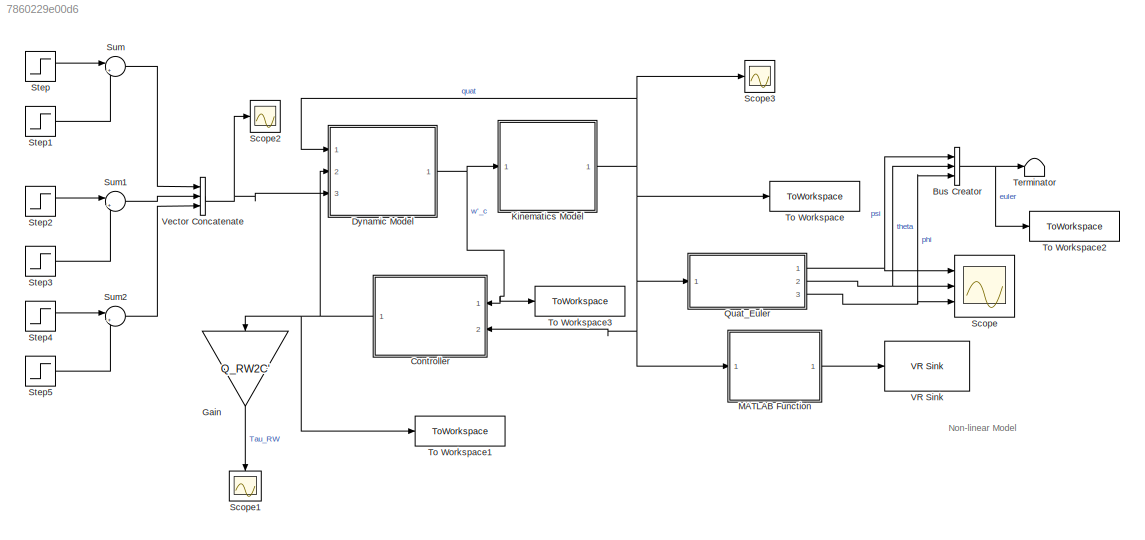
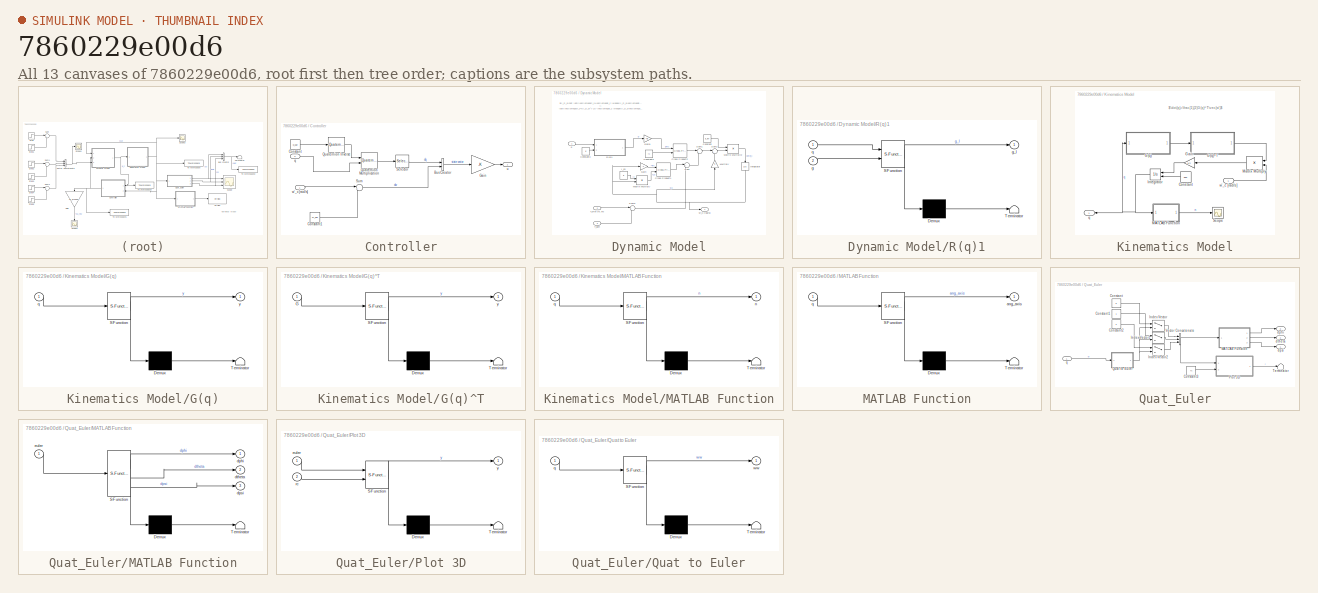
[diagram: thumbnail index - all 13 canvases of the model, root first then tree order]
MODEL slx_7860229e00d6
KIND model
CONFIG AbsTol = auto
CONFIG EnableMultiTasking = off
CONFIG FixedStep = 5e-6
CONFIG MaxStep = 10^-6
CONFIG MinStep = auto
CONFIG RelTol = 1e-3
CONFIG SampleTimeConstraint = Unconstrained
CONFIG SolverName = ode4
CONFIG StartTime = 0.0
CONFIG StopTime = 10
BLOCK [BusCreator] Bus Creator
  DisplayOption = bar
  InheritFromInputs = on
  Inputs = 3
  Ports = [3, 1]
BLOCK [SubSystem] Controller
  Ports = [2, 1]
  RequestExecContextInheritance = off
BLOCK [BusCreator] Controller/Bus Creator
  DisplayOption = bar
  InheritFromInputs = on
  Inputs = 2
  Ports = [2, 1]
BLOCK [Constant] Controller/Constant
  Value = q_bar
BLOCK [Constant] Controller/Constant1
  Value = w_bar
BLOCK [Gain] Controller/Gain
  Gain = -K
  Multiplication = Matrix(K*u) (u vector)
BLOCK [Reference] Controller/Quaternion Inverse  REF=aerolibutil/Quaternion
Inverse
  Ports = [1, 1]
  SourceBlock = aerolibutil/Quaternion\nInverse
  SourceProductBaseCode = AE
  SourceType = Quaternion Inverse
BLOCK [Reference] Controller/Quaternion Multiplication  REF=aerolibutil/Quaternion
Multiplication
  Ports = [2, 1]
  SourceBlock = aerolibutil/Quaternion\nMultiplication
  SourceProductBaseCode = AE
  SourceType = Quaternion Multiplication
BLOCK [Selector] Controller/Selector
  IndexOptions = Index vector (dialog)
  Indices = [2 3 4]
  InputPortWidth = 4
  OutputSizes = 1
  Ports = [1, 1]
BLOCK [Sum] Controller/Sum
  Inputs = |+-
  Ports = [2, 1]
BLOCK [Inport] Controller/q
  Port = 2
BLOCK [Outport] Controller/u
BLOCK [Inport] Controller/w'_c [rad//s]
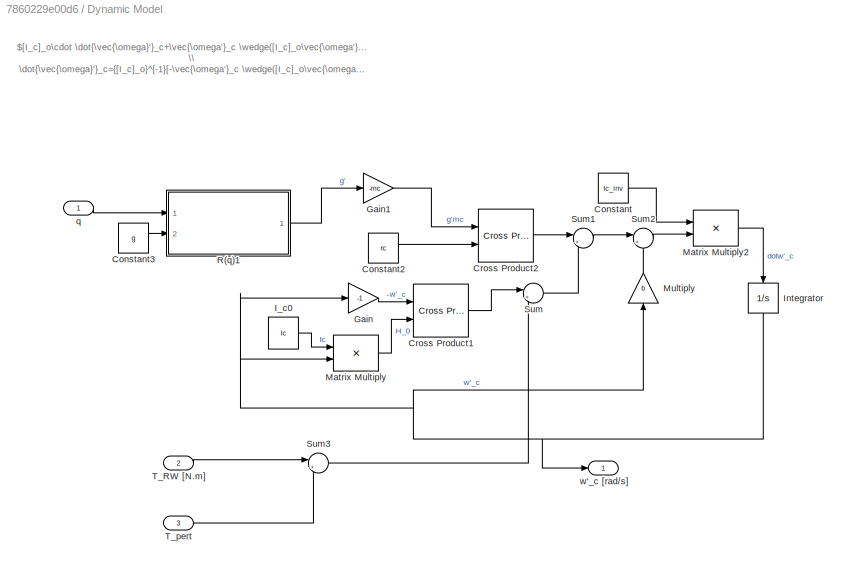
BLOCK [SubSystem] Dynamic Model
  Ports = [3, 1]
  RequestExecContextInheritance = off
BLOCK [Constant] Dynamic Model/Constant
  Value = Ic_inv
BLOCK [Constant] Dynamic Model/Constant2
  Value = rc
BLOCK [Constant] Dynamic Model/Constant3
  Value = g
BLOCK [Reference] Dynamic Model/Cross Product1  REF=vrlib/Utilities/Cross Product
  Ports = [2, 1]
  SourceBlock = vrlib/Utilities/Cross Product
  SourceProductBaseCode = SL
  SourceType = Cross Product
BLOCK [Reference] Dynamic Model/Cross Product2  REF=vrlib/Utilities/Cross Product
  Ports = [2, 1]
  SourceBlock = vrlib/Utilities/Cross Product
  SourceProductBaseCode = SL
  SourceType = Cross Product
BLOCK [Gain] Dynamic Model/Gain
  Gain = -1
BLOCK [Gain] Dynamic Model/Gain1
  Gain = -mc
BLOCK [Constant] Dynamic Model/I_c0
  Value = Ic
BLOCK [Integrator] Dynamic Model/Integrator
  InitialCondition = w00
  NameLocation = left
  Ports = [1, 1]
BLOCK [Product] Dynamic Model/Matrix Multiply
  Multiplication = Matrix(*)
  Ports = [2, 1]
BLOCK [Product] Dynamic Model/Matrix Multiply2
  Multiplication = Matrix(*)
  Ports = [2, 1]
BLOCK [Gain] Dynamic Model/Multiply
  Gain = b
  NameLocation = right
BLOCK [SubSystem] Dynamic Model/R(q)1
  ErrorFcn = Stateflow.Translate.translate
  PermitHierarchicalResolution = ExplicitOnly
  Ports = [2, 1]
  RequestExecContextInheritance = off
  SFBlockType = MATLAB Function
  TreatAsAtomicUnit = on
BLOCK [Demux] Dynamic Model/R(q)1/ Demux 
  Outputs = 1
  Ports = [1, 1]
BLOCK [S-Function] Dynamic Model/R(q)1/ SFunction 
  EnableBusSupport = on
  FunctionName = sf_sfun
  PortCounts = [2 2]
  Ports = [2, 2]
  SFcnIsStateOwnerBlock = off
  SFunctionDeploymentMode = off
  Tag = Stateflow S-Function 1
BLOCK [Terminator] Dynamic Model/R(q)1/ Terminator 
BLOCK [Inport] Dynamic Model/R(q)1/g
  Port = 2
BLOCK [Outport] Dynamic Model/R(q)1/g_l
BLOCK [Inport] Dynamic Model/R(q)1/q
BLOCK [Sum] Dynamic Model/Sum
  Inputs = |++
  Ports = [2, 1]
BLOCK [Sum] Dynamic Model/Sum1
  Inputs = |++
  Ports = [2, 1]
BLOCK [Sum] Dynamic Model/Sum2
  Inputs = |+-
  Ports = [2, 1]
BLOCK [Sum] Dynamic Model/Sum3
  Inputs = |++
  Ports = [2, 1]
BLOCK [Inport] Dynamic Model/T_RW [N.m]
  Port = 2
BLOCK [Inport] Dynamic Model/T_pert
  Port = 3
BLOCK [Inport] Dynamic Model/q
BLOCK [Outport] Dynamic Model/w'_c [rad//s]
BLOCK [Gain] Gain
  Gain = Q_RW2C'
  Multiplication = Matrix(K*u)
  NameLocation = left
BLOCK [SubSystem] Kinematics Model
  Ports = [1, 1]
  RequestExecContextInheritance = off
  ShowPortLabels = FromPortBlockName
BLOCK [Constant] Kinematics Model/Constant
  NameLocation = top
  Value = q00
BLOCK [SubSystem] Kinematics Model/G(q)
  ErrorFcn = Stateflow.Translate.translate
  PermitHierarchicalResolution = ExplicitOnly
  Ports = [1, 1]
  RequestExecContextInheritance = off
  SFBlockType = MATLAB Function
  TreatAsAtomicUnit = on
BLOCK [Demux] Kinematics Model/G(q)/ Demux 
  Outputs = 1
  Ports = [1, 1]
BLOCK [S-Function] Kinematics Model/G(q)/ SFunction 
  EnableBusSupport = on
  FunctionName = sf_sfun
  PortCounts = [1 2]
  Ports = [1, 2]
  SFcnIsStateOwnerBlock = off
  SFunctionDeploymentMode = off
  Tag = Stateflow S-Function 5
BLOCK [Terminator] Kinematics Model/G(q)/ Terminator 
BLOCK [Inport] Kinematics Model/G(q)/q
BLOCK [Outport] Kinematics Model/G(q)/y
BLOCK [SubSystem] Kinematics Model/G(q)^T
  ErrorFcn = Stateflow.Translate.translate
  PermitHierarchicalResolution = ExplicitOnly
  Ports = [1, 1]
  RequestExecContextInheritance = off
  SFBlockType = MATLAB Function
  TreatAsAtomicUnit = on
BLOCK [Demux] Kinematics Model/G(q)^T/ Demux 
  Outputs = 1
  Ports = [1, 1]
BLOCK [S-Function] Kinematics Model/G(q)^T/ SFunction 
  EnableBusSupport = on
  FunctionName = sf_sfun
  PortCounts = [1 2]
  Ports = [1, 2]
  SFcnIsStateOwnerBlock = off
  SFunctionDeploymentMode = off
  Tag = Stateflow S-Function 6
BLOCK [Terminator] Kinematics Model/G(q)^T/ Terminator 
BLOCK [Inport] Kinematics Model/G(q)^T/G
BLOCK [Outport] Kinematics Model/G(q)^T/y
BLOCK [Gain] Kinematics Model/Gain
  Gain = 1/2
  NameLocation = top
BLOCK [Integrator] Kinematics Model/Integrator
  InitialCondition = q00
  InitialConditionSource = external
  LowerSaturationLimit = -1
  NameLocation = top
  Ports = [2, 1]
  UpperSaturationLimit = 1
BLOCK [SubSystem] Kinematics Model/MATLAB Function
  ErrorFcn = Stateflow.Translate.translate
  PermitHierarchicalResolution = ExplicitOnly
  Ports = [1, 1]
  RequestExecContextInheritance = off
  SFBlockType = MATLAB Function
  TreatAsAtomicUnit = on
BLOCK [Demux] Kinematics Model/MATLAB Function/ Demux 
  Outputs = 1
  Ports = [1, 1]
BLOCK [S-Function] Kinematics Model/MATLAB Function/ SFunction 
  EnableBusSupport = on
  FunctionName = sf_sfun
  PortCounts = [1 2]
  Ports = [1, 2]
  SFcnIsStateOwnerBlock = off
  SFunctionDeploymentMode = off
  Tag = Stateflow S-Function 4
BLOCK [Terminator] Kinematics Model/MATLAB Function/ Terminator 
BLOCK [Outport] Kinematics Model/MATLAB Function/n
BLOCK [Inport] Kinematics Model/MATLAB Function/q
BLOCK [Product] Kinematics Model/Matrix Multiply
  Multiplication = Matrix(*)
  NameLocation = top
  Ports = [2, 1]
BLOCK [Scope] Kinematics Model/Scope
  Floating = off
  NumInputPorts = 1
  Ports = [1]
  ScopeSpecificationString = Simulink.scopes.TimeScopeBlockCfg('CurrentConfiguration', extmgr.ConfigurationSet(extmgr.Configuration('Core','General UI',true),extmgr.Configuration('Core','Source UI',true),extmgr.Configuration('Sources','WiredSimulink',true,'DataLoggingVariableName','ScopeData1'),extmgr.Configuration('Visuals','Time Domain',true,'SerializedDisplays',{struct('MinYLimReal','0.9','MaxYLimReal','1.1','YLabelReal','...<+1485ch>
BLOCK [Outport] Kinematics Model/q
  NameLocation = top
BLOCK [Inport] Kinematics Model/w'_c [rad//s]
BLOCK [SubSystem] MATLAB Function
  Commented = on
  ErrorFcn = Stateflow.Translate.translate
  PermitHierarchicalResolution = ExplicitOnly
  Ports = [1, 1]
  RequestExecContextInheritance = off
  SFBlockType = MATLAB Function
  TreatAsAtomicUnit = on
BLOCK [Demux] MATLAB Function/ Demux 
  Outputs = 1
  Ports = [1, 1]
BLOCK [S-Function] MATLAB Function/ SFunction 
  EnableBusSupport = on
  FunctionName = sf_sfun
  PortCounts = [1 2]
  Ports = [1, 2]
  SFcnIsStateOwnerBlock = off
  SFunctionDeploymentMode = off
  Tag = Stateflow S-Function 7
BLOCK [Terminator] MATLAB Function/ Terminator 
BLOCK [Outport] MATLAB Function/ang_axis
BLOCK [Inport] MATLAB Function/q
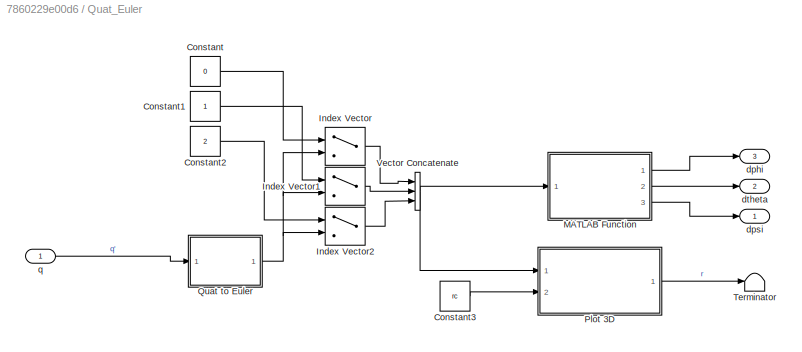
BLOCK [SubSystem] Quat_Euler
  Ports = [1, 3]
  RequestExecContextInheritance = off
BLOCK [Constant] Quat_Euler/Constant
  Value = 0
BLOCK [Constant] Quat_Euler/Constant1
BLOCK [Constant] Quat_Euler/Constant2
  Value = 2
BLOCK [Constant] Quat_Euler/Constant3
  Value = rc
BLOCK [MultiPortSwitch] Quat_Euler/Index Vector
  DataPortOrder = Zero-based contiguous
  InputSameDT = off
  Inputs = 1
  Ports = [2, 1]
  SaturateOnIntegerOverflow = off
  zeroidx = on
BLOCK [MultiPortSwitch] Quat_Euler/Index Vector1
  DataPortOrder = Zero-based contiguous
  InputSameDT = off
  Inputs = 1
  Ports = [2, 1]
  SaturateOnIntegerOverflow = off
  zeroidx = on
BLOCK [MultiPortSwitch] Quat_Euler/Index Vector2
  DataPortOrder = Zero-based contiguous
  InputSameDT = off
  Inputs = 1
  Ports = [2, 1]
  SaturateOnIntegerOverflow = off
  zeroidx = on
BLOCK [SubSystem] Quat_Euler/MATLAB Function
  ErrorFcn = Stateflow.Translate.translate
  PermitHierarchicalResolution = ExplicitOnly
  Ports = [1, 3]
  RequestExecContextInheritance = off
  SFBlockType = MATLAB Function
  TreatAsAtomicUnit = on
BLOCK [Demux] Quat_Euler/MATLAB Function/ Demux 
  Outputs = 1
  Ports = [1, 1]
BLOCK [S-Function] Quat_Euler/MATLAB Function/ SFunction 
  EnableBusSupport = on
  FunctionName = sf_sfun
  PortCounts = [1 4]
  Ports = [1, 4]
  SFcnIsStateOwnerBlock = off
  SFunctionDeploymentMode = off
  Tag = Stateflow S-Function 2
BLOCK [Terminator] Quat_Euler/MATLAB Function/ Terminator 
BLOCK [Outport] Quat_Euler/MATLAB Function/dphi
BLOCK [Outport] Quat_Euler/MATLAB Function/dpsi
  Port = 3
BLOCK [Outport] Quat_Euler/MATLAB Function/dtheta
  Port = 2
BLOCK [Inport] Quat_Euler/MATLAB Function/euler
BLOCK [SubSystem] Quat_Euler/Plot 3D
  ErrorFcn = Stateflow.Translate.translate
  PermitHierarchicalResolution = ExplicitOnly
  Ports = [2, 1]
  RequestExecContextInheritance = off
  SFBlockType = MATLAB Function
  TreatAsAtomicUnit = on
BLOCK [Demux] Quat_Euler/Plot 3D/ Demux 
  Outputs = 1
  Ports = [1, 1]
BLOCK [S-Function] Quat_Euler/Plot 3D/ SFunction 
  EnableBusSupport = on
  FunctionName = sf_sfun
  PortCounts = [2 2]
  Ports = [2, 2]
  SFcnIsStateOwnerBlock = off
  SFunctionDeploymentMode = off
  Tag = Stateflow S-Function 9
BLOCK [Terminator] Quat_Euler/Plot 3D/ Terminator 
BLOCK [Inport] Quat_Euler/Plot 3D/euler
BLOCK [Inport] Quat_Euler/Plot 3D/rc
  Port = 2
BLOCK [Outport] Quat_Euler/Plot 3D/y
BLOCK [SubSystem] Quat_Euler/Quat to Euler
  ErrorFcn = Stateflow.Translate.translate
  PermitHierarchicalResolution = ExplicitOnly
  Ports = [1, 1]
  RequestExecContextInheritance = off
  SFBlockType = MATLAB Function
  TreatAsAtomicUnit = on
BLOCK [Demux] Quat_Euler/Quat to Euler/ Demux 
  Outputs = 1
  Ports = [1, 1]
BLOCK [S-Function] Quat_Euler/Quat to Euler/ SFunction 
  EnableBusSupport = on
  FunctionName = sf_sfun
  PortCounts = [1 2]
  Ports = [1, 2]
  SFcnIsStateOwnerBlock = off
  SFunctionDeploymentMode = off
  Tag = Stateflow S-Function 3
BLOCK [Terminator] Quat_Euler/Quat to Euler/ Terminator 
BLOCK [Inport] Quat_Euler/Quat to Euler/q
BLOCK [Outport] Quat_Euler/Quat to Euler/ww
BLOCK [Terminator] Quat_Euler/Terminator
BLOCK [Concatenate] Quat_Euler/Vector Concatenate
  NumInputs = 3
  Ports = [3, 1]
BLOCK [Outport] Quat_Euler/dphi
  Port = 3
BLOCK [Outport] Quat_Euler/dpsi
BLOCK [Outport] Quat_Euler/dtheta
  Port = 2
BLOCK [Inport] Quat_Euler/q
BLOCK [Scope] Scope
  Floating = off
  NumInputPorts = 3
  Ports = [3]
  ScopeSpecificationString = Simulink.scopes.TimeScopeBlockCfg('CurrentConfiguration', extmgr.ConfigurationSet(extmgr.Configuration('Core','General UI',true,'DisplayFullSourceName',true),extmgr.Configuration('Core','Source UI',true),extmgr.Configuration('Sources','WiredSimulink',true),extmgr.Configuration('Visuals','Time Domain',true,'SerializedDisplays',{struct('MinYLimReal','-3.4363','MaxYLimReal','11.52835','YLabelReal',''...<+1601ch>
BLOCK [Scope] Scope1
  Floating = off
  NameLocation = left
  NumInputPorts = 1
  Ports = [1]
  ScopeSpecificationString = Simulink.scopes.TimeScopeBlockCfg('CurrentConfiguration', extmgr.ConfigurationSet(extmgr.Configuration('Core','General UI',true),extmgr.Configuration('Core','Source UI',true),extmgr.Configuration('Sources','WiredSimulink',true,'DataLoggingVariableName','ScopeData1'),extmgr.Configuration('Visuals','Time Domain',true,'SerializedDisplays',{struct('MinYLimReal','-0.39705','MaxYLimReal','0.28561','YLab...<+1459ch>
BLOCK [Scope] Scope2
  Floating = off
  NumInputPorts = 1
  Ports = [1]
  ScopeSpecificationString = Simulink.scopes.TimeScopeBlockCfg('CurrentConfiguration', extmgr.ConfigurationSet(extmgr.Configuration('Core','General UI',true),extmgr.Configuration('Core','Source UI',true),extmgr.Configuration('Sources','WiredSimulink',true,'DataLoggingVariableName','ScopeData1'),extmgr.Configuration('Visuals','Time Domain',true,'SerializedDisplays',{struct('MinYLimReal','-1.00000','MaxYLimReal','1.00000','YLab...<+1411ch>
BLOCK [Scope] Scope3
  Floating = off
  NumInputPorts = 1
  Ports = [1]
  ScopeSpecificationString = Simulink.scopes.TimeScopeBlockCfg('CurrentConfiguration', extmgr.ConfigurationSet(extmgr.Configuration('Core','General UI',true),extmgr.Configuration('Core','Source UI',true),extmgr.Configuration('Sources','WiredSimulink',true,'DataLoggingVariableName','ScopeData1'),extmgr.Configuration('Visuals','Time Domain',true,'SerializedDisplays',{struct('MinYLimReal','-0.12452','MaxYLimReal','1.12072','YLab...<+1392ch>
BLOCK [Step] Step
  After = 3
  SampleTime = 0
  Time = 2.5
BLOCK [Step] Step1
  After = 3
  SampleTime = 0
  Time = 2.501
BLOCK [Step] Step2
  After = 3
  SampleTime = 0
  Time = 5
BLOCK [Step] Step3
  After = 3
  SampleTime = 0
  Time = 5.001
BLOCK [Step] Step4
  After = 3
  SampleTime = 0
  Time = 7.5
BLOCK [Step] Step5
  After = 3
  SampleTime = 0
  Time = 7.501
BLOCK [Sum] Sum
  Inputs = |+-
  Ports = [2, 1]
BLOCK [Sum] Sum1
  Inputs = |+-
  Ports = [2, 1]
BLOCK [Sum] Sum2
  Inputs = |+-
  Ports = [2, 1]
BLOCK [Terminator] Terminator
BLOCK [ToWorkspace] To Workspace
  FixptAsFi = on
  MaxDataPoints = inf
  Ports = [1]
  SampleTime = -1
  SaveFormat = Timeseries
  VariableName = quat
BLOCK [ToWorkspace] To Workspace1
  FixptAsFi = on
  MaxDataPoints = inf
  Ports = [1]
  SampleTime = -1
  SaveFormat = Timeseries
  VariableName = u
BLOCK [ToWorkspace] To Workspace2
  FixptAsFi = on
  MaxDataPoints = inf
  Ports = [1]
  SampleTime = -1
  SaveFormat = Timeseries
  VariableName = euler
BLOCK [ToWorkspace] To Workspace3
  FixptAsFi = on
  MaxDataPoints = inf
  Ports = [1]
  SampleTime = -1
  SaveFormat = Timeseries
  VariableName = w
BLOCK [Reference] VR Sink  REF=vrlib/VR Sink
  Commented = on
  InstantiateOnLoad = on
  Ports = [1]
  SourceBlock = vrlib/VR Sink
  SourceProductBaseCode = SL
  SourceType = Virtual Reality Sink
BLOCK [Concatenate] Vector Concatenate
  NumInputs = 3
  Ports = [3, 1]
ANNOTATION (root): Non-linear Model
ANNOTATION Dynamic Model: $[I_c]_o\cdot \dot{\vec{\omega}'}_c+\vec{\omega'}_c \wedge([I_c]_o\vec{\omega'}_c)= {\vec{\tau}}+m_c \vec{g}'\wedge\vec{r}'_c - b(G(q)\Lambda q)(G(q)\Lambda q)^T\vec{\omega_c'} \\ \dot{\vec{\omega}'}_c={[I_c]_o}^{-1}[-\vec{\omega'}_c \wedge([I_c]_o\vec{\omega'}_c)+ {\vec{\tau}}+m_c \vec{g}'\wedge\vec{r}'_c - b(G(q)\Lambda q)(G(q)\Lambda q)^T\vec{\omega_c'}]$
ANNOTATION Kinematics Model: $\dot{q}=\frac{1}{2}G(q)^T\vec{w'}$
NET Bus Creator:1 -> Terminator:1, To Workspace2:1
LINE Controller/Bus Creator:1 -> Controller/Gain:1
LINE Controller/Constant1:1 -> Controller/Sum:2
LINE Controller/Constant:1 -> Controller/Quaternion Inverse:1
LINE Controller/Gain:1 -> Controller/u:1
LINE Controller/Quaternion Inverse:1 -> Controller/Quaternion Multiplication:1
LINE Controller/Quaternion Multiplication:1 -> Controller/Selector:1
LINE Controller/Selector:1 -> Controller/Bus Creator:1
LINE Controller/Sum:1 -> Controller/Bus Creator:2
LINE Controller/q:1 -> Controller/Quaternion Multiplication:2
LINE Controller/w'_c [rad//s]:1 -> Controller/Sum:1
NET Controller:1 -> Dynamic Model:2, Gain:1, To Workspace1:1
LINE Dynamic Model/Constant2:1 -> Dynamic Model/Cross Product2:2
LINE Dynamic Model/Constant3:1 -> Dynamic Model/R(q)1:2
LINE Dynamic Model/Constant:1 -> Dynamic Model/Matrix Multiply2:1
LINE Dynamic Model/Cross Product1:1 -> Dynamic Model/Sum:1
LINE Dynamic Model/Cross Product2:1 -> Dynamic Model/Sum1:1
LINE Dynamic Model/Gain1:1 -> Dynamic Model/Cross Product2:1
LINE Dynamic Model/Gain:1 -> Dynamic Model/Cross Product1:1
LINE Dynamic Model/I_c0:1 -> Dynamic Model/Matrix Multiply:1
NET Dynamic Model/Integrator:1 -> Dynamic Model/Gain:1, Dynamic Model/Matrix Multiply:2, Dynamic Model/Multiply:1, Dynamic Model/w'_c [rad//s]:1
LINE Dynamic Model/Matrix Multiply2:1 -> Dynamic Model/Integrator:1
LINE Dynamic Model/Matrix Multiply:1 -> Dynamic Model/Cross Product1:2
LINE Dynamic Model/Multiply:1 -> Dynamic Model/Sum2:2
LINE Dynamic Model/R(q)1:1 -> Dynamic Model/Gain1:1
LINE Dynamic Model/Sum1:1 -> Dynamic Model/Sum2:1
LINE Dynamic Model/Sum2:1 -> Dynamic Model/Matrix Multiply2:2
LINE Dynamic Model/Sum3:1 -> Dynamic Model/Sum:2
LINE Dynamic Model/Sum:1 -> Dynamic Model/Sum1:2
LINE Dynamic Model/T_RW [N.m]:1 -> Dynamic Model/Sum3:1
LINE Dynamic Model/T_pert:1 -> Dynamic Model/Sum3:2
LINE Dynamic Model/q:1 -> Dynamic Model/R(q)1:1
NET Dynamic Model:1 -> Controller:1, Kinematics Model:1, To Workspace3:1
LINE Gain:1 -> Scope1:1
LINE Kinematics Model/Constant:1 -> Kinematics Model/Integrator:2
LINE Kinematics Model/G(q):1 -> Kinematics Model/G(q)^T:1
LINE Kinematics Model/G(q)^T:1 -> Kinematics Model/Matrix Multiply:1
LINE Kinematics Model/Gain:1 -> Kinematics Model/Integrator:1
NET Kinematics Model/Integrator:1 -> Kinematics Model/G(q):1, Kinematics Model/MATLAB Function:1, Kinematics Model/q:1
LINE Kinematics Model/MATLAB Function:1 -> Kinematics Model/Scope:1
LINE Kinematics Model/Matrix Multiply:1 -> Kinematics Model/Gain:1
LINE Kinematics Model/w'_c [rad//s]:1 -> Kinematics Model/Matrix Multiply:2
NET Kinematics Model:1 -> Controller:2, Dynamic Model:1, MATLAB Function:1, Quat_Euler:1, Scope3:1, To Workspace:1
LINE MATLAB Function:1 -> VR Sink:1
LINE Quat_Euler/Constant1:1 -> Quat_Euler/Index Vector1:1
LINE Quat_Euler/Constant2:1 -> Quat_Euler/Index Vector2:1
LINE Quat_Euler/Constant3:1 -> Quat_Euler/Plot 3D:2
LINE Quat_Euler/Constant:1 -> Quat_Euler/Index Vector:1
LINE Quat_Euler/Index Vector1:1 -> Quat_Euler/Vector Concatenate:2
LINE Quat_Euler/Index Vector2:1 -> Quat_Euler/Vector Concatenate:3
LINE Quat_Euler/Index Vector:1 -> Quat_Euler/Vector Concatenate:1
LINE Quat_Euler/MATLAB Function:1 -> Quat_Euler/dphi:1
LINE Quat_Euler/MATLAB Function:2 -> Quat_Euler/dtheta:1
LINE Quat_Euler/MATLAB Function:3 -> Quat_Euler/dpsi:1
LINE Quat_Euler/Plot 3D:1 -> Quat_Euler/Terminator:1
NET Quat_Euler/Quat to Euler:1 -> Quat_Euler/Index Vector1:2, Quat_Euler/Index Vector2:2, Quat_Euler/Index Vector:2
NET Quat_Euler/Vector Concatenate:1 -> Quat_Euler/MATLAB Function:1, Quat_Euler/Plot 3D:1
LINE Quat_Euler/q:1 -> Quat_Euler/Quat to Euler:1
NET Quat_Euler:1 -> Bus Creator:1, Scope:1
NET Quat_Euler:2 -> Bus Creator:2, Scope:2
NET Quat_Euler:3 -> Bus Creator:3, Scope:3
LINE Step1:1 -> Sum:2
LINE Step2:1 -> Sum1:1
LINE Step3:1 -> Sum1:2
LINE Step4:1 -> Sum2:1
LINE Step5:1 -> Sum2:2
LINE Step:1 -> Sum:1
LINE Sum1:1 -> Vector Concatenate:2
LINE Sum2:1 -> Vector Concatenate:3
LINE Sum:1 -> Vector Concatenate:1
NET Vector Concatenate:1 -> Dynamic Model:3, Scope2:1
note: NET lines group one-source signal fan-out (src -> all destinations, sorted); 1:1 wires keep LINE
CHART Dynamic Model/R(q)1 states=1 transitions=1
  STATE_LABEL 'eML_blk_kernel()'
  STATE_LABEL "SCRIPT:\nfunction g_l = fcn(q,g)\n    I = eye(3);\n    qi = [q(2);q(3);q(4)];\n    qT = qi.';\n    g_l = 2*dot(qi,g)*qi + q(1)^2*g + 2*q(1)*cross(g,qi) - dot(qi,qi)*g;\nend\n"
CHART Quat_Euler/MATLAB Function states=1 transitions=1
  STATE_LABEL 'eML_blk_kernel()'
  STATE_LABEL 'SCRIPT:\nfunction [dphi,dtheta,dpsi] = fcn(euler)\n\n\ndpsi = 180/pi *euler(3);\ndtheta = 180/pi *euler(2);\ndphi = 180/pi *euler(1);\nend\n\n'
CHART Quat_Euler/Quat to Euler states=1 transitions=1
  STATE_LABEL 'eML_blk_kernel()'
  STATE_LABEL "SCRIPT:\n     function ww = fcn(q)\n\nangles = quat2eul(q.','ZYX');\nww = angles.';\n\n% w = [psi;theteul;phi];\n"
CHART Kinematics Model/MATLAB Function states=1 transitions=1
  STATE_LABEL 'eML_blk_kernel()'
  STATE_LABEL 'SCRIPT:\nfunction n = norm(q)\n    n = sqrt(q(1)^2+q(2)^2+q(3)^2+q(4)^2);'
CHART Kinematics Model/G(q) states=1 transitions=1
  STATE_LABEL 'eML_blk_kernel()'
  STATE_LABEL 'SCRIPT:\nfunction y = fcn(q)\n    y = [-q(2) q(1) q(4) -q(3); -q(3) -q(4) q(1) q(2); -q(4) q(3) -q(2) q(1)];  \nend'
CHART Kinematics Model/G(q)^T states=1 transitions=1
  STATE_LABEL 'eML_blk_kernel()'
  STATE_LABEL "SCRIPT:\nfunction y = fcn(G)\n    y = G.';  \nend\n"
CHART MATLAB Function states=1 transitions=1
  STATE_LABEL 'eML_blk_kernel()'
  STATE_LABEL 'SCRIPT:\nfunction ang_axis = fcn(q)\nif q(1) >1\n    q(1) = 0.999999;\nend\nangle = 2*acos(q(1));\nx = q(2)/sqrt(1 - q(1)^2);\ny = q(3)/sqrt(1 - q(1)^2);\nz = q(4)/sqrt(1 - q(1)^2);\nang_axis = [x,y,z,angle];'
CHART Quat_Euler/Plot 3D states=1 transitions=1
  STATE_LABEL 'eML_blk_kernel()'
  STATE_LABEL 'SCRIPT:\nfunction y = fcn(euler,rc)\n\nR1 = [[cos(euler(1)) sin(euler(1)) 0];\n      [-sin(euler(1)) cos(euler(1)) 0];\n      [0 0 1]];\nR2 = [[cos(euler(2)) 0 -sin(euler(2))];\n     [0 1 0];\n     [sin(euler(2)) 0 cos(euler(2))]];\nR3 = [[cos(euler(3)) sin(euler(3)) 0];\n      [-sin(euler(3)) cos(euler(3)) 0];\n      [0 0 1]];\nR = R3*R2*R1;\n\ny =inv(R)*rc;\n\n'
CHART  states=0 transitions=0
CHART  states=0 transitions=0
CHART  states=0 transitions=0
CHART  states=0 transitions=0
CHART  states=0 transitions=0
CHART  states=0 transitions=0
CHART  states=0 transitions=0
CHART  states=0 transitions=0
